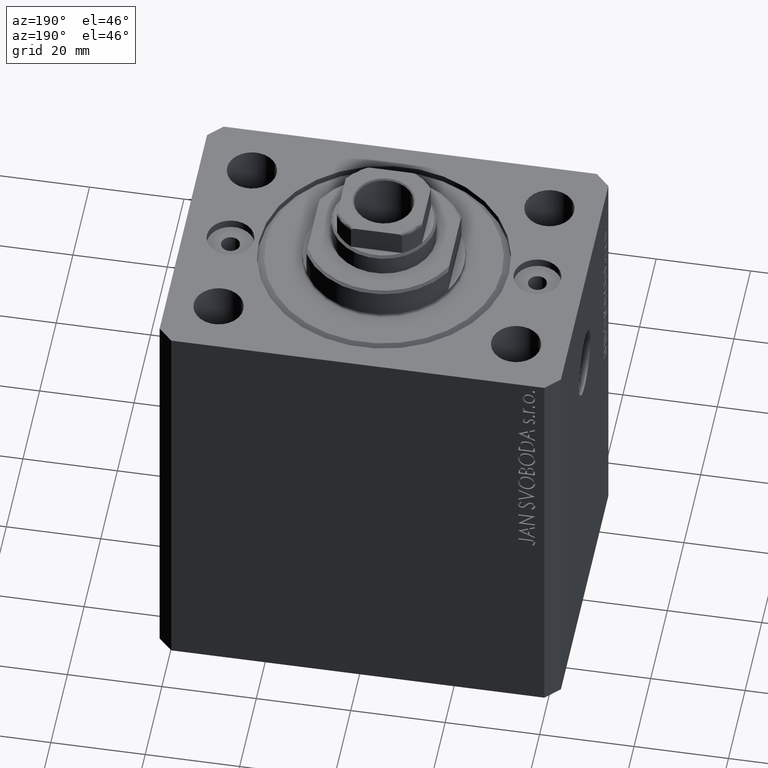
[diagram: clean part render]
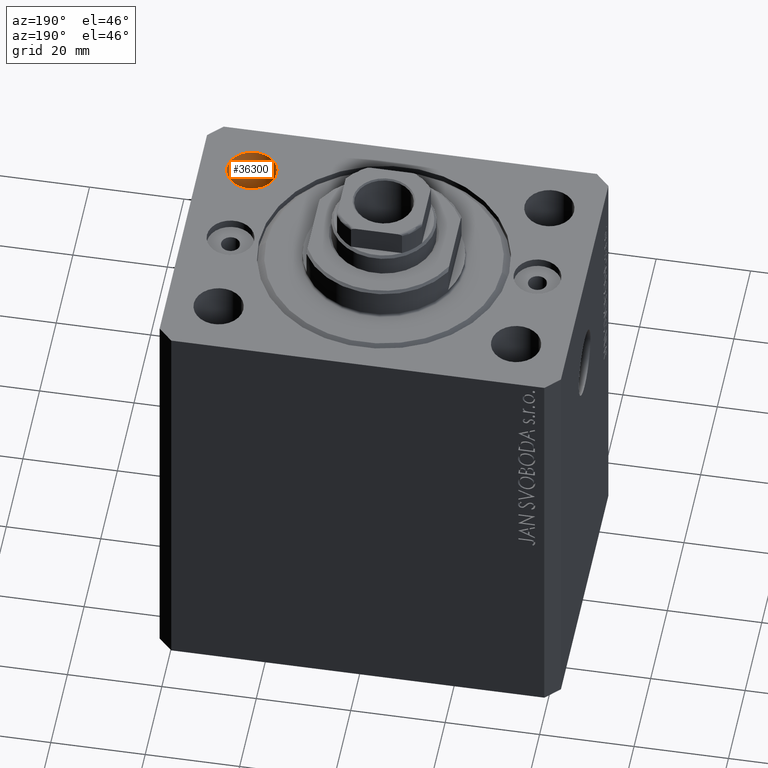
[diagram: same view with one face highlighted and labeled with its STEP entity id]
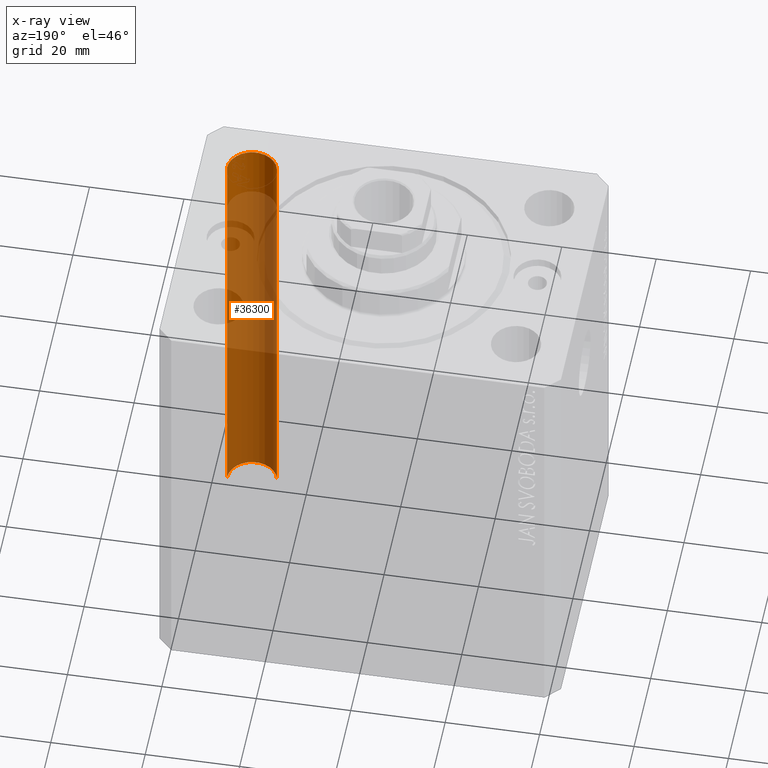
[diagram: x-ray of the same camera — body ghosted, the highlighted face saturated]
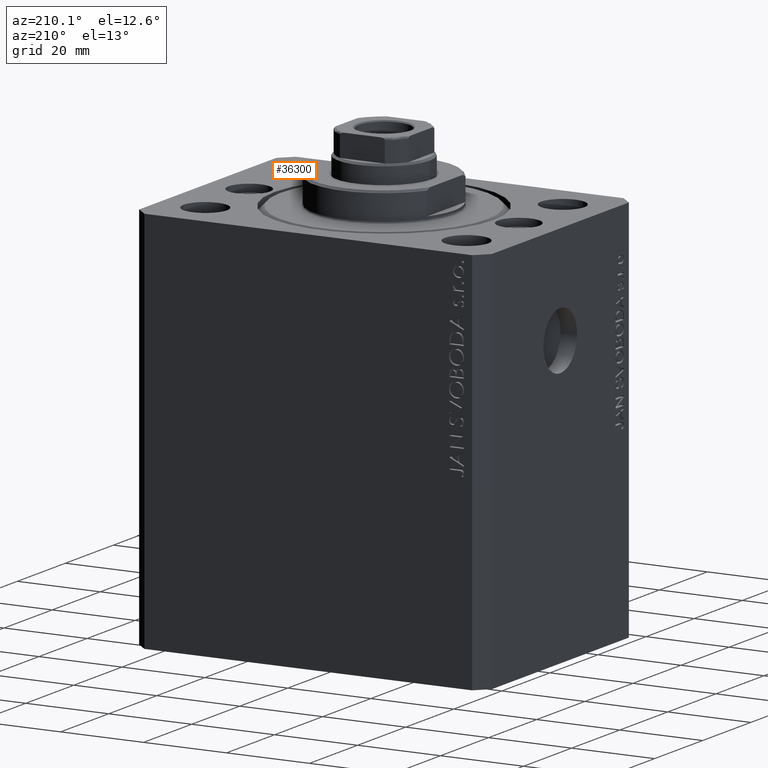
[diagram: same view with one face highlighted and labeled with its STEP entity id]
A machine part, auxiliary view. The second image highlights one B-rep face of the part: STEP entity #36300.
The next image is the same camera in x-ray: the body ghosted, the highlighted face saturated — about 87% of this face is hidden behind the body in this view.
A second angle (auxiliary view) of the same face is appended — the face is thin or edge-on in the first view.
In plain terms, the highlighted cylindrical surface (edge-blend (fillet) strip) has radius 5.25 mm, axis along (0, 0, 1).
Its self-contained STEP definition (entity closure, byte-faithful):
#1543 = CARTESIAN_POINT ( 'NONE',  ( 31.49999999999999289, -20.00000000000000355, 0.000000000000000000 ) ) ;
#1775 = EDGE_CURVE ( 'NONE', #39457, #22101, #19093, .T. ) ;
#3914 = VECTOR ( 'NONE', #43368, 1000.000000000000000 ) ;
#5258 = LINE ( 'NONE', #15570, #3914 ) ;
#5683 = CARTESIAN_POINT ( 'NONE',  ( 36.74999999999999289, -20.00000000000000355, -93.00000000000000000 ) ) ;
#8964 = FACE_OUTER_BOUND ( 'NONE', #36273, .T. ) ;
#11503 = EDGE_CURVE ( 'NONE', #32881, #22101, #33086, .T. ) ;
#12069 = DIRECTION ( 'NONE',  ( 1.000000000000000000, 0.000000000000000000, 0.000000000000000000 ) ) ;
#12766 = CYLINDRICAL_SURFACE ( 'NONE', #21091, 5.249999999999997335 ) ;
#13647 = EDGE_CURVE ( 'NONE', #29655, #39457, #5258, .T. ) ;
#13731 = ORIENTED_EDGE ( 'NONE', *, *, #11503, .F. ) ;
#15570 = CARTESIAN_POINT ( 'NONE',  ( 26.24999999999999645, -20.00000000000000355, -107.8492424049175042 ) ) ;
#16129 = DIRECTION ( 'NONE',  ( 1.000000000000000000, 0.000000000000000000, 0.000000000000000000 ) ) ;
#19093 = CIRCLE ( 'NONE', #44149, 5.249999999999997335 ) ;
#19715 = DIRECTION ( 'NONE',  ( -0.000000000000000000, -0.000000000000000000, 1.000000000000000000 ) ) ;
#21091 = AXIS2_PLACEMENT_3D ( 'NONE', #29613, #19715, #16129 ) ;
#21493 = DIRECTION ( 'NONE',  ( -0.000000000000000000, -0.000000000000000000, -1.000000000000000000 ) ) ;
#22101 = VERTEX_POINT ( 'NONE', #35596 ) ;
#24018 = AXIS2_PLACEMENT_3D ( 'NONE', #44201, #21493, #35171 ) ;
#26150 = CIRCLE ( 'NONE', #24018, 5.249999999999997335 ) ;
#26189 = ORIENTED_EDGE ( 'NONE', *, *, #1775, .T. ) ;
#26415 = DIRECTION ( 'NONE',  ( 0.000000000000000000, 0.000000000000000000, 1.000000000000000000 ) ) ;
#29613 = CARTESIAN_POINT ( 'NONE',  ( 31.49999999999999289, -20.00000000000000355, -107.8492424049175042 ) ) ;
#29644 = VECTOR ( 'NONE', #36224, 1000.000000000000000 ) ;
#29655 = VERTEX_POINT ( 'NONE', #33480 ) ;
#30165 = CARTESIAN_POINT ( 'NONE',  ( 36.74999999999999289, -20.00000000000000355, -107.8492424049175042 ) ) ;
#32881 = VERTEX_POINT ( 'NONE', #5683 ) ;
#33086 = LINE ( 'NONE', #30165, #29644 ) ;
#33480 = CARTESIAN_POINT ( 'NONE',  ( 26.24999999999999645, -20.00000000000000355, -93.00000000000000000 ) ) ;
#33889 = ORIENTED_EDGE ( 'NONE', *, *, #13647, .T. ) ;
#34319 = CARTESIAN_POINT ( 'NONE',  ( 26.24999999999999645, -20.00000000000000355, 0.000000000000000000 ) ) ;
#35171 = DIRECTION ( 'NONE',  ( 1.000000000000000000, 0.000000000000000000, 0.000000000000000000 ) ) ;
#35596 = CARTESIAN_POINT ( 'NONE',  ( 36.74999999999999289, -20.00000000000000355, 0.000000000000000000 ) ) ;
#36224 = DIRECTION ( 'NONE',  ( -0.000000000000000000, -0.000000000000000000, 1.000000000000000000 ) ) ;
#36273 = EDGE_LOOP ( 'NONE', ( #37293, #33889, #26189, #13731 ) ) ;
#36300 = ADVANCED_FACE ( 'NONE', ( #8964 ), #12766, .F. ) ;
#37293 = ORIENTED_EDGE ( 'NONE', *, *, #42826, .T. ) ;
#39457 = VERTEX_POINT ( 'NONE', #34319 ) ;
#42826 = EDGE_CURVE ( 'NONE', #32881, #29655, #26150, .T. ) ;
#43368 = DIRECTION ( 'NONE',  ( -0.000000000000000000, -0.000000000000000000, 1.000000000000000000 ) ) ;
#44149 = AXIS2_PLACEMENT_3D ( 'NONE', #1543, #26415, #12069 ) ;
#44201 = CARTESIAN_POINT ( 'NONE',  ( 31.49999999999999289, -20.00000000000000355, -93.00000000000000000 ) ) ;